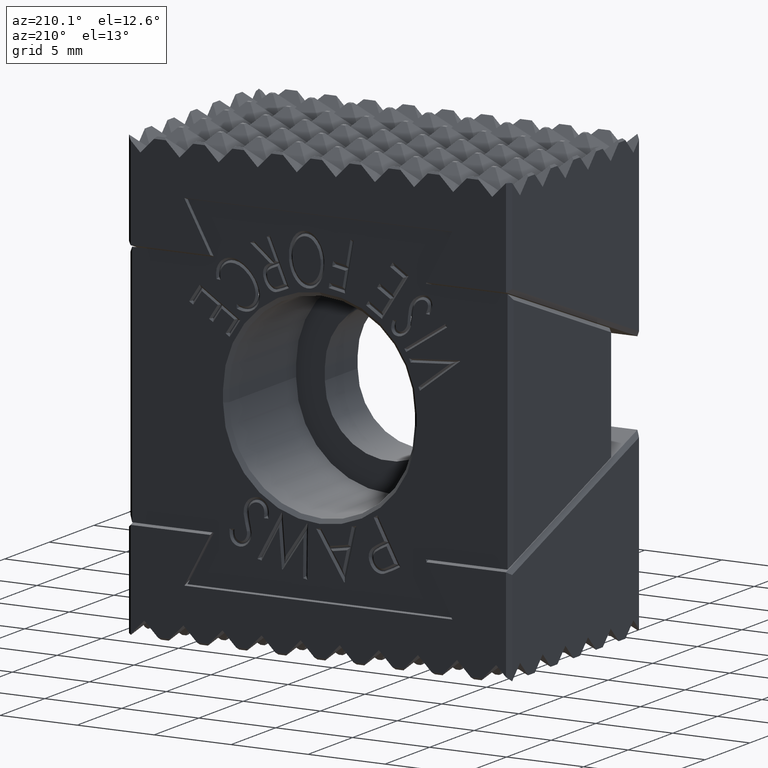
[diagram: clean part render]
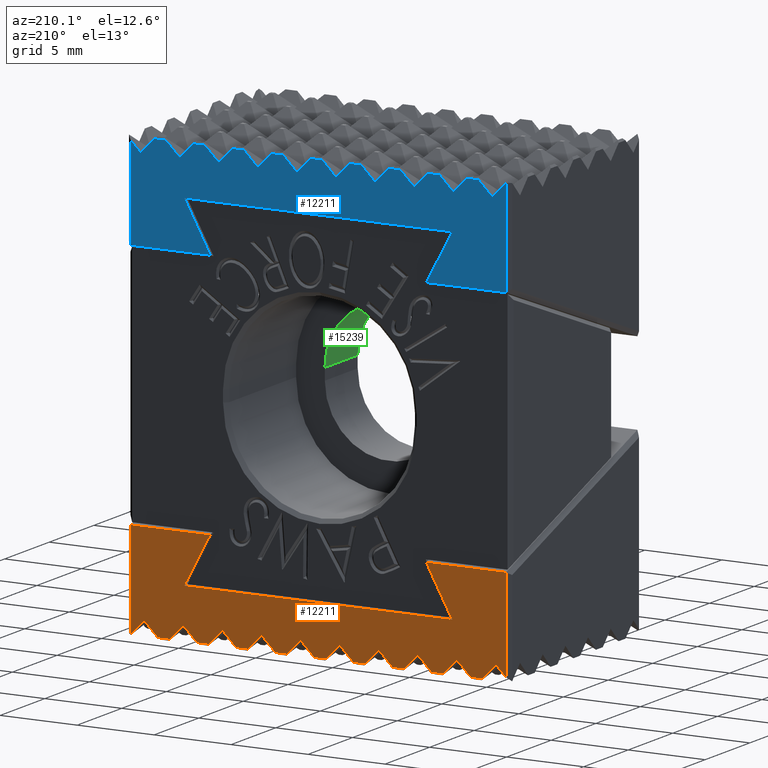
[diagram: same view with three faces highlighted in distinct colors, each labeled with its STEP entity id]
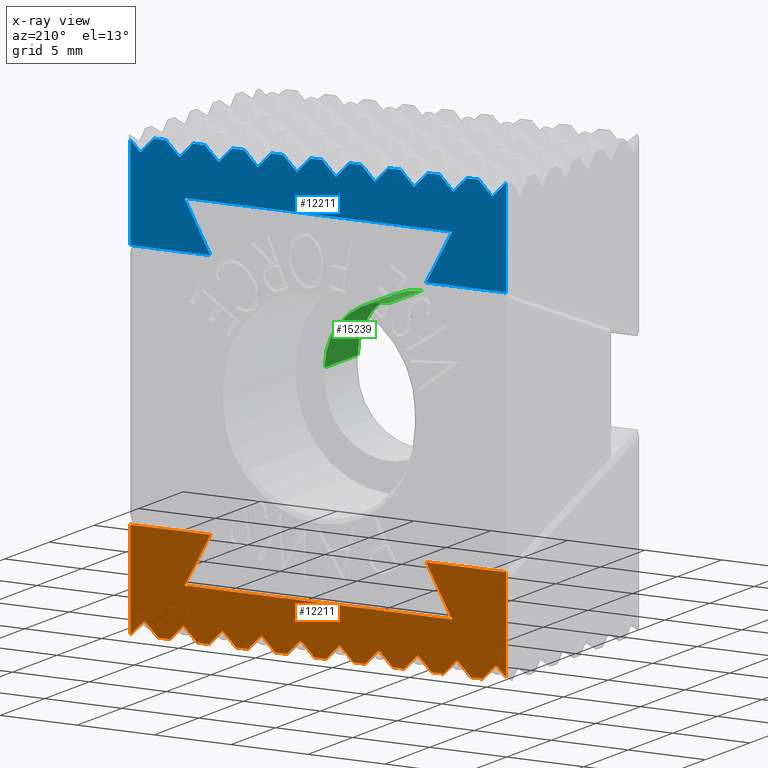
[diagram: x-ray of the same camera — body ghosted, the three highlighted faces saturated]
A machine part, auxiliary view with three faces highlighted in distinct colors.
The next image is the same camera in x-ray (body ghosted, the three faces saturated) — at least one of them is partly hidden behind the body in this view.
Their STEP definitions:

[orange] entity #12211 — the highlighted planar face has unit normal (-0, -1, 0).
#35 = LINE ( 'NONE', #5667, #8275 ) ;
#129 = VECTOR ( 'NONE', #3670, 39.37007874015748143 ) ;
#147 = CARTESIAN_POINT ( 'NONE',  ( 5.190511187962099918E-15, 0.5799999999999998490, 0.01000000000000009388 ) ) ;
#154 = CARTESIAN_POINT ( 'NONE',  ( 0.2578972641256064846, 0.5799999999999998490, -0.2762072594216366528 ) ) ;
#157 = EDGE_CURVE ( 'NONE', #8536, #16295, #10873, .T. ) ;
#335 = VECTOR ( 'NONE', #15856, 39.37007874015748143 ) ;
#478 = CARTESIAN_POINT ( 'NONE',  ( 0.04500000000000095590, 0.5799999999999999600, -0.3449999999999999178 ) ) ;
#570 = VECTOR ( 'NONE', #5255, 39.37007874015748143 ) ;
#643 = CARTESIAN_POINT ( 'NONE',  ( 0.2578972641256065401, 0.5799999999999998490, 0.4899999999999998246 ) ) ;
#667 = ORIENTED_EDGE ( 'NONE', *, *, #6059, .F. ) ;
#749 = DIRECTION ( 'NONE',  ( -0.7071067811865487940, 9.860761315262649757E-32, -0.7071067811865462405 ) ) ;
#814 = VECTOR ( 'NONE', #10030, 39.37007874015748854 ) ;
#829 = CARTESIAN_POINT ( 'NONE',  ( 6.283250385427805205E-15, 0.5799999999999998490, 0.1100000000000000283 ) ) ;
#962 = EDGE_CURVE ( 'NONE', #19814, #18743, #4843, .T. ) ;
#1115 = CARTESIAN_POINT ( 'NONE',  ( 0.01000000000000002970, 0.5799999999999999600, -0.3800000000000010036 ) ) ;
#1180 = DIRECTION ( 'NONE',  ( 0.7071067811865485719, 0.0000000000000000000, -0.7071067811865464625 ) ) ;
#1197 = CARTESIAN_POINT ( 'NONE',  ( 0.009999999999999962044, 0.5799999999999999600, 0.4899999999999998246 ) ) ;
#1231 = DIRECTION ( 'NONE',  ( 0.7071067811865485719, 0.0000000000000000000, -0.7071067811865464625 ) ) ;
#1317 = CARTESIAN_POINT ( 'NONE',  ( 0.01000000000000002970, 0.5799999999999998490, -0.08000000000000409561 ) ) ;
#1354 = EDGE_CURVE ( 'NONE', #7415, #11900, #8112, .T. ) ;
#1740 = CARTESIAN_POINT ( 'NONE',  ( 0.01000000000000002970, 0.5799999999999998490, 0.09000000000000503431 ) ) ;
#1776 = FACE_OUTER_BOUND ( 'NONE', #19823, .T. ) ;
#1782 = CARTESIAN_POINT ( 'NONE',  ( -6.829619984160658046E-17, 0.5799999999999999600, 0.4899999999999998246 ) ) ;
#1824 = CARTESIAN_POINT ( 'NONE',  ( 0.04500000000000314165, 0.5799999999999998490, -0.1450000000000000455 ) ) ;
#1935 = CARTESIAN_POINT ( 'NONE',  ( 0.009999999999999962044, 0.5799999999999999600, -0.2800000000000019140 ) ) ;
#1988 = DIRECTION ( 'NONE',  ( 0.7071067811865485719, 0.0000000000000000000, -0.7071067811865464625 ) ) ;
#2024 = VECTOR ( 'NONE', #9681, 39.37007874015748143 ) ;
#2041 = VERTEX_POINT ( 'NONE', #13659 ) ;
#2200 = EDGE_CURVE ( 'NONE', #9236, #16295, #16061, .T. ) ;
#2308 = DIRECTION ( 'NONE',  ( 0.8789733129752161922, 9.860761315262649757E-32, 0.4768709627114787186 ) ) ;
#2398 = DIRECTION ( 'NONE',  ( -0.7071067811865486830, 9.860761315262651947E-32, -0.7071067811865464625 ) ) ;
#2428 = CARTESIAN_POINT ( 'NONE',  ( 0.009999999999999962044, 0.5799999999999999600, 0.4899999999999998246 ) ) ;
#2462 = VECTOR ( 'NONE', #7531, 39.37007874015748143 ) ;
#2479 = EDGE_CURVE ( 'NONE', #7184, #9196, #8566, .T. ) ;
#2778 = DIRECTION ( 'NONE',  ( 0.0000000000000000000, -8.651438588012386691E-33, 1.000000000000000000 ) ) ;
#2795 = CARTESIAN_POINT ( 'NONE',  ( 0.01000000000000002970, 0.5799999999999998490, -0.009999999999995996466 ) ) ;
#2858 = CARTESIAN_POINT ( 'NONE',  ( 0.009999999999999892655, 0.5799999999999999600, 0.2900000000000070854 ) ) ;
#2884 = VERTEX_POINT ( 'NONE', #10025 ) ;
#2962 = EDGE_CURVE ( 'NONE', #7415, #18623, #14579, .T. ) ;
#3072 = EDGE_CURVE ( 'NONE', #5490, #5179, #9035, .T. ) ;
#3113 = VERTEX_POINT ( 'NONE', #10624 ) ;
#3234 = LINE ( 'NONE', #829, #7853 ) ;
#3269 = VERTEX_POINT ( 'NONE', #4953 ) ;
#3346 = DIRECTION ( 'NONE',  ( 0.0000000000000000000, 8.651438588012386691E-33, -1.000000000000000000 ) ) ;
#3392 = DIRECTION ( 'NONE',  ( 0.7071067811865485719, 0.0000000000000000000, -0.7071067811865464625 ) ) ;
#3469 = CARTESIAN_POINT ( 'NONE',  ( -6.829619984160658046E-17, 0.5799999999999999600, -0.4899999999999998246 ) ) ;
#3473 = CARTESIAN_POINT ( 'NONE',  ( 0.2578972641256065401, 0.5799999999999998490, 0.4899999999999998246 ) ) ;
#3616 = ORIENTED_EDGE ( 'NONE', *, *, #16701, .F. ) ;
#3620 = ORIENTED_EDGE ( 'NONE', *, *, #2479, .F. ) ;
#3630 = ORIENTED_EDGE ( 'NONE', *, *, #12282, .F. ) ;
#3670 = DIRECTION ( 'NONE',  ( 0.0000000000000000000, 8.651438588012386691E-33, -1.000000000000000000 ) ) ;
#3854 = EDGE_CURVE ( 'NONE', #12297, #13939, #8525, .T. ) ;
#3921 = ORIENTED_EDGE ( 'NONE', *, *, #17882, .T. ) ;
#3969 = ORIENTED_EDGE ( 'NONE', *, *, #4564, .T. ) ;
#4012 = LINE ( 'NONE', #8283, #570 ) ;
#4017 = EDGE_CURVE ( 'NONE', #8699, #12569, #4655, .T. ) ;
#4163 = VECTOR ( 'NONE', #11544, 39.37007874015748143 ) ;
#4244 = VECTOR ( 'NONE', #16653, 39.37007874015748854 ) ;
#4384 = VECTOR ( 'NONE', #1988, 39.37007874015748854 ) ;
#4454 = VECTOR ( 'NONE', #1231, 39.37007874015748854 ) ;
#4495 = LINE ( 'NONE', #12741, #12196 ) ;
#4543 = CARTESIAN_POINT ( 'NONE',  ( 1.024442997624098658E-15, 0.5799999999999999600, -0.3899999999999997913 ) ) ;
#4564 = EDGE_CURVE ( 'NONE', #15330, #3269, #15987, .T. ) ;
#4630 = CARTESIAN_POINT ( 'NONE',  ( 0.009999999999999962044, 0.5799999999999999600, 0.4899999999999998246 ) ) ;
#4655 = LINE ( 'NONE', #6217, #12834 ) ;
#4731 = DIRECTION ( 'NONE',  ( 0.7071067811865485719, 0.0000000000000000000, -0.7071067811865464625 ) ) ;
#4744 = VECTOR ( 'NONE', #2778, 39.37007874015748143 ) ;
#4843 = LINE ( 'NONE', #12802, #4384 ) ;
#4953 = CARTESIAN_POINT ( 'NONE',  ( 0.2578972641256065401, 0.5799999999999998490, 0.4799999999999998157 ) ) ;
#5055 = DIRECTION ( 'NONE',  ( -1.000000000000000000, 0.0000000000000000000, 0.0000000000000000000 ) ) ;
#5150 = ORIENTED_EDGE ( 'NONE', *, *, #16647, .T. ) ;
#5179 = VERTEX_POINT ( 'NONE', #7167 ) ;
#5255 = DIRECTION ( 'NONE',  ( -0.7071067811865486830, 9.860761315262651947E-32, -0.7071067811865464625 ) ) ;
#5309 = DIRECTION ( 'NONE',  ( -0.7071067811865486830, 9.860761315262651947E-32, -0.7071067811865464625 ) ) ;
#5331 = CARTESIAN_POINT ( 'NONE',  ( 0.01000000000000002970, 0.5799999999999998490, 0.1900000000000059974 ) ) ;
#5376 = CARTESIAN_POINT ( 'NONE',  ( 4.166068190338001457E-15, 0.5799999999999998490, -0.08999999999999989952 ) ) ;
#5393 = VERTEX_POINT ( 'NONE', #14176 ) ;
#5489 = EDGE_CURVE ( 'NONE', #10560, #11002, #19518, .T. ) ;
#5490 = VERTEX_POINT ( 'NONE', #5331 ) ;
#5596 = ORIENTED_EDGE ( 'NONE', *, *, #1354, .F. ) ;
#5667 = CARTESIAN_POINT ( 'NONE',  ( 0.009999999999999962044, 0.5799999999999999600, 0.4899999999999998246 ) ) ;
#5712 = CARTESIAN_POINT ( 'NONE',  ( 0.009999999999999962044, 0.5799999999999999600, -0.3099999999999989986 ) ) ;
#5938 = LINE ( 'NONE', #4630, #13685 ) ;
#6059 = EDGE_CURVE ( 'NONE', #2041, #11937, #11209, .T. ) ;
#6061 = VECTOR ( 'NONE', #6441, 39.37007874015748854 ) ;
#6070 = CARTESIAN_POINT ( 'NONE',  ( 0.04500000000000416167, 0.5799999999999998490, -0.04500000000000003997 ) ) ;
#6121 = VECTOR ( 'NONE', #20025, 39.37007874015748854 ) ;
#6154 = LINE ( 'NONE', #3473, #2024 ) ;
#6159 = DIRECTION ( 'NONE',  ( 0.0000000000000000000, -8.651438588012386691E-33, 1.000000000000000000 ) ) ;
#6217 = CARTESIAN_POINT ( 'NONE',  ( 0.009999999999999962044, 0.5799999999999999600, 0.4899999999999998246 ) ) ;
#6388 = CARTESIAN_POINT ( 'NONE',  ( 0.04500000000000723560, 0.5799999999999999600, 0.2549999999999998934 ) ) ;
#6441 = DIRECTION ( 'NONE',  ( 0.7071067811865485719, 0.0000000000000000000, -0.7071067811865464625 ) ) ;
#6447 = ORIENTED_EDGE ( 'NONE', *, *, #3072, .F. ) ;
#6475 = ORIENTED_EDGE ( 'NONE', *, *, #962, .F. ) ;
#6548 = VERTEX_POINT ( 'NONE', #12642 ) ;
#6648 = EDGE_CURVE ( 'NONE', #18743, #9886, #10716, .T. ) ;
#6671 = CARTESIAN_POINT ( 'NONE',  ( 0.01000000000000009909, 0.5799999999999999600, -0.4100000000000001421 ) ) ;
#6673 = EDGE_CURVE ( 'NONE', #5393, #10560, #7122, .T. ) ;
#6698 = ORIENTED_EDGE ( 'NONE', *, *, #15372, .F. ) ;
#6752 = CARTESIAN_POINT ( 'NONE',  ( 0.01000000000000002970, 0.5799999999999998490, 0.1199999999999937644 ) ) ;
#6830 = ORIENTED_EDGE ( 'NONE', *, *, #11559, .F. ) ;
#7122 = LINE ( 'NONE', #11569, #18480 ) ;
#7167 = CARTESIAN_POINT ( 'NONE',  ( 0.04500000000000621558, 0.5799999999999998490, 0.1549999999999998601 ) ) ;
#7184 = VERTEX_POINT ( 'NONE', #5712 ) ;
#7192 = VECTOR ( 'NONE', #5309, 39.37007874015748143 ) ;
#7195 = ORIENTED_EDGE ( 'NONE', *, *, #15457, .F. ) ;
#7405 = CARTESIAN_POINT ( 'NONE',  ( 8.263840180834396088E-15, 0.5799999999999999600, 0.3099999999999999978 ) ) ;
#7415 = VERTEX_POINT ( 'NONE', #1740 ) ;
#7483 = VERTEX_POINT ( 'NONE', #17365 ) ;
#7531 = DIRECTION ( 'NONE',  ( 0.0000000000000000000, -8.651438588012386691E-33, 1.000000000000000000 ) ) ;
#7538 = LINE ( 'NONE', #19754, #19391 ) ;
#7560 = EDGE_CURVE ( 'NONE', #3113, #11876, #18691, .T. ) ;
#7607 = CARTESIAN_POINT ( 'NONE',  ( 0.04500000000000204531, 0.5799999999999999600, -0.2450000000000000233 ) ) ;
#7853 = VECTOR ( 'NONE', #2398, 39.37007874015748143 ) ;
#8112 = LINE ( 'NONE', #17677, #14889 ) ;
#8142 = EDGE_CURVE ( 'NONE', #5490, #11340, #35, .T. ) ;
#8237 = VECTOR ( 'NONE', #17919, 39.37007874015748143 ) ;
#8243 = VERTEX_POINT ( 'NONE', #9659 ) ;
#8262 = ORIENTED_EDGE ( 'NONE', *, *, #16646, .F. ) ;
#8275 = VECTOR ( 'NONE', #8845, 39.37007874015748143 ) ;
#8283 = CARTESIAN_POINT ( 'NONE',  ( 7.239397183210296839E-15, 0.5799999999999998490, 0.2100000000000000200 ) ) ;
#8375 = LINE ( 'NONE', #12909, #129 ) ;
#8525 = LINE ( 'NONE', #16780, #2462 ) ;
#8536 = VERTEX_POINT ( 'NONE', #2858 ) ;
#8566 = LINE ( 'NONE', #10321, #13141 ) ;
#8699 = VERTEX_POINT ( 'NONE', #6671 ) ;
#8845 = DIRECTION ( 'NONE',  ( 0.0000000000000000000, -8.651438588012386691E-33, 1.000000000000000000 ) ) ;
#8876 = LINE ( 'NONE', #1824, #16602 ) ;
#8912 = ORIENTED_EDGE ( 'NONE', *, *, #7560, .F. ) ;
#8954 = EDGE_CURVE ( 'NONE', #8536, #15061, #7538, .T. ) ;
#9033 = LINE ( 'NONE', #9167, #12616 ) ;
#9035 = LINE ( 'NONE', #10484, #4454 ) ;
#9072 = EDGE_CURVE ( 'NONE', #8699, #2041, #14777, .T. ) ;
#9146 = ORIENTED_EDGE ( 'NONE', *, *, #4017, .T. ) ;
#9167 = CARTESIAN_POINT ( 'NONE',  ( 0.009999999999999962044, 0.5799999999999999600, 0.4899999999999998246 ) ) ;
#9183 = EDGE_CURVE ( 'NONE', #7184, #11876, #16949, .T. ) ;
#9196 = VERTEX_POINT ( 'NONE', #478 ) ;
#9236 = VERTEX_POINT ( 'NONE', #19573 ) ;
#9247 = VERTEX_POINT ( 'NONE', #14945 ) ;
#9345 = LINE ( 'NONE', #14290, #9814 ) ;
#9352 = ORIENTED_EDGE ( 'NONE', *, *, #13532, .T. ) ;
#9659 = CARTESIAN_POINT ( 'NONE',  ( 0.009999999999999962044, 0.5799999999999999600, 0.4199999999999906031 ) ) ;
#9681 = DIRECTION ( 'NONE',  ( 0.0000000000000000000, 8.651438588012386691E-33, -1.000000000000000000 ) ) ;
#9802 = VECTOR ( 'NONE', #10946, 39.37007874015748143 ) ;
#9814 = VECTOR ( 'NONE', #5055, 39.37007874015748143 ) ;
#9886 = VERTEX_POINT ( 'NONE', #1317 ) ;
#10025 = CARTESIAN_POINT ( 'NONE',  ( 0.01000000000000002970, 0.5799999999999998490, -0.1099999999999970307 ) ) ;
#10030 = DIRECTION ( 'NONE',  ( -0.8789733129752161922, 9.860761315262649757E-32, 0.4768709627114787186 ) ) ;
#10321 = CARTESIAN_POINT ( 'NONE',  ( 0.04500000000000095590, 0.5799999999999999600, -0.3449999999999999178 ) ) ;
#10379 = DIRECTION ( 'NONE',  ( 0.7071067811865485719, 0.0000000000000000000, -0.7071067811865464625 ) ) ;
#10461 = VECTOR ( 'NONE', #17662, 39.37007874015748143 ) ;
#10484 = CARTESIAN_POINT ( 'NONE',  ( 0.04500000000000621558, 0.5799999999999998490, 0.1549999999999998601 ) ) ;
#10560 = VERTEX_POINT ( 'NONE', #154 ) ;
#10605 = DIRECTION ( 'NONE',  ( 0.0000000000000000000, -8.651438588012386691E-33, 1.000000000000000000 ) ) ;
#10609 = EDGE_CURVE ( 'NONE', #7483, #8243, #10773, .T. ) ;
#10624 = CARTESIAN_POINT ( 'NONE',  ( 0.04500000000000204531, 0.5799999999999999600, -0.2450000000000000233 ) ) ;
#10716 = LINE ( 'NONE', #5376, #18962 ) ;
#10750 = VECTOR ( 'NONE', #16151, 39.37007874015748143 ) ;
#10773 = LINE ( 'NONE', #16116, #7192 ) ;
#10873 = LINE ( 'NONE', #15288, #18654 ) ;
#10918 = VECTOR ( 'NONE', #12959, 39.37007874015748143 ) ;
#10946 = DIRECTION ( 'NONE',  ( -0.7071067811865486830, 9.860761315262651947E-32, -0.7071067811865464625 ) ) ;
#11002 = VERTEX_POINT ( 'NONE', #15903 ) ;
#11209 = LINE ( 'NONE', #3469, #335 ) ;
#11316 = EDGE_CURVE ( 'NONE', #9247, #8243, #17063, .T. ) ;
#11340 = VERTEX_POINT ( 'NONE', #13590 ) ;
#11436 = ORIENTED_EDGE ( 'NONE', *, *, #2200, .F. ) ;
#11521 = DIRECTION ( 'NONE',  ( 0.7071067811865485719, 0.0000000000000000000, -0.7071067811865464625 ) ) ;
#11544 = DIRECTION ( 'NONE',  ( 1.000000000000000000, 0.0000000000000000000, 0.0000000000000000000 ) ) ;
#11559 = EDGE_CURVE ( 'NONE', #12297, #3113, #19763, .T. ) ;
#11569 = CARTESIAN_POINT ( 'NONE',  ( 0.3798083846171721456, 0.5799999999999998490, -0.2100666012971422192 ) ) ;
#11590 = EDGE_CURVE ( 'NONE', #2884, #9886, #5938, .T. ) ;
#11691 = CARTESIAN_POINT ( 'NONE',  ( -6.829619984160658046E-17, 0.5799999999999999600, 0.4799999999999998157 ) ) ;
#11788 = ORIENTED_EDGE ( 'NONE', *, *, #9072, .F. ) ;
#11876 = VERTEX_POINT ( 'NONE', #1935 ) ;
#11900 = VERTEX_POINT ( 'NONE', #16230 ) ;
#11937 = VERTEX_POINT ( 'NONE', #14736 ) ;
#12158 = ORIENTED_EDGE ( 'NONE', *, *, #6648, .F. ) ;
#12196 = VECTOR ( 'NONE', #14288, 39.37007874015748854 ) ;
#12211 = ADVANCED_FACE ( 'NONE', ( #1776 ), #12525, .F. ) ;
#12258 = VECTOR ( 'NONE', #4731, 39.37007874015748854 ) ;
#12282 = EDGE_CURVE ( 'NONE', #15330, #7483, #4495, .T. ) ;
#12297 = VERTEX_POINT ( 'NONE', #15870 ) ;
#12525 = PLANE ( 'NONE',  #15446 ) ;
#12569 = VERTEX_POINT ( 'NONE', #1115 ) ;
#12588 = DIRECTION ( 'NONE',  ( 0.0000000000000000000, -1.000000000000000000, -8.651438588012386691E-33 ) ) ;
#12616 = VECTOR ( 'NONE', #16873, 39.37007874015748143 ) ;
#12642 = CARTESIAN_POINT ( 'NONE',  ( 0.1355168202908766939, 0.5799999999999998490, 0.3426025403784442869 ) ) ;
#12724 = LINE ( 'NONE', #13985, #12258 ) ;
#12728 = CARTESIAN_POINT ( 'NONE',  ( 3.073328992872296170E-15, 0.5799999999999998490, -0.1899999999999998912 ) ) ;
#12741 = CARTESIAN_POINT ( 'NONE',  ( 0.04500000000000935196, 0.5799999999999999600, 0.4549999999999998490 ) ) ;
#12802 = CARTESIAN_POINT ( 'NONE',  ( 0.04500000000000416167, 0.5799999999999998490, -0.04500000000000003997 ) ) ;
#12834 = VECTOR ( 'NONE', #17036, 39.37007874015748143 ) ;
#12909 = CARTESIAN_POINT ( 'NONE',  ( 0.1355168202908767494, 0.5799999999999998490, 0.4899999999999998246 ) ) ;
#12953 = ORIENTED_EDGE ( 'NONE', *, *, #157, .T. ) ;
#12959 = DIRECTION ( 'NONE',  ( -0.7071067811865486830, 9.860761315262651947E-32, -0.7071067811865464625 ) ) ;
#13064 = EDGE_CURVE ( 'NONE', #9196, #12569, #14331, .T. ) ;
#13141 = VECTOR ( 'NONE', #10379, 39.37007874015748854 ) ;
#13228 = ORIENTED_EDGE ( 'NONE', *, *, #6673, .T. ) ;
#13532 = EDGE_CURVE ( 'NONE', #19814, #13780, #9033, .T. ) ;
#13554 = ORIENTED_EDGE ( 'NONE', *, *, #9183, .T. ) ;
#13590 = CARTESIAN_POINT ( 'NONE',  ( 0.009999999999999962044, 0.5799999999999998490, 0.2199999999999926736 ) ) ;
#13659 = CARTESIAN_POINT ( 'NONE',  ( 0.04499999999999999833, 0.5799999999999999600, -0.4449999999999999512 ) ) ;
#13685 = VECTOR ( 'NONE', #6159, 39.37007874015748143 ) ;
#13780 = VERTEX_POINT ( 'NONE', #18216 ) ;
#13797 = ORIENTED_EDGE ( 'NONE', *, *, #10609, .F. ) ;
#13826 = ORIENTED_EDGE ( 'NONE', *, *, #3854, .T. ) ;
#13904 = VECTOR ( 'NONE', #17393, 39.37007874015748143 ) ;
#13939 = VERTEX_POINT ( 'NONE', #18615 ) ;
#13985 = CARTESIAN_POINT ( 'NONE',  ( 0.04500000000000826256, 0.5799999999999999600, 0.3549999999999998157 ) ) ;
#14176 = CARTESIAN_POINT ( 'NONE',  ( 0.1355168202908766939, 0.5799999999999998490, -0.3426025403784442869 ) ) ;
#14288 = DIRECTION ( 'NONE',  ( 0.7071067811865485719, 0.0000000000000000000, -0.7071067811865464625 ) ) ;
#14290 = CARTESIAN_POINT ( 'NONE',  ( 0.0000000000000000000, 0.5799999999999999600, -0.4799999999999998157 ) ) ;
#14331 = LINE ( 'NONE', #4543, #6121 ) ;
#14556 = CARTESIAN_POINT ( 'NONE',  ( 0.009999999999999962044, 0.5799999999999999600, 0.4899999999999998246 ) ) ;
#14579 = LINE ( 'NONE', #14556, #10461 ) ;
#14637 = CARTESIAN_POINT ( 'NONE',  ( -0.03096532833989321457, 0.5799999999999999600, 0.4329243980729670649 ) ) ;
#14638 = VECTOR ( 'NONE', #16861, 39.37007874015748854 ) ;
#14736 = CARTESIAN_POINT ( 'NONE',  ( 0.01000000000000009909, 0.5799999999999999600, -0.4799999999999998157 ) ) ;
#14777 = LINE ( 'NONE', #15704, #6061 ) ;
#14889 = VECTOR ( 'NONE', #11521, 39.37007874015748854 ) ;
#14945 = CARTESIAN_POINT ( 'NONE',  ( 0.01000000000000002970, 0.5799999999999999600, 0.3900000000000080624 ) ) ;
#15061 = VERTEX_POINT ( 'NONE', #6388 ) ;
#15288 = CARTESIAN_POINT ( 'NONE',  ( 0.009999999999999962044, 0.5799999999999999600, 0.4899999999999998246 ) ) ;
#15330 = VERTEX_POINT ( 'NONE', #16998 ) ;
#15372 = EDGE_CURVE ( 'NONE', #11900, #13780, #17556, .T. ) ;
#15446 = AXIS2_PLACEMENT_3D ( 'NONE', #1782, #12588, #3346 ) ;
#15457 = EDGE_CURVE ( 'NONE', #2884, #19696, #8876, .T. ) ;
#15481 = EDGE_CURVE ( 'NONE', #6548, #5393, #8375, .T. ) ;
#15704 = CARTESIAN_POINT ( 'NONE',  ( 0.04499999999999999833, 0.5799999999999999600, -0.4449999999999999512 ) ) ;
#15788 = ORIENTED_EDGE ( 'NONE', *, *, #19011, .T. ) ;
#15856 = DIRECTION ( 'NONE',  ( -0.7071067811865486830, 9.860761315262651947E-32, -0.7071067811865464625 ) ) ;
#15870 = CARTESIAN_POINT ( 'NONE',  ( 0.009999999999999962044, 0.5799999999999998490, -0.2099999999999981048 ) ) ;
#15903 = CARTESIAN_POINT ( 'NONE',  ( 0.2578972641256065401, 0.5799999999999998490, -0.4799999999999998157 ) ) ;
#15987 = LINE ( 'NONE', #11691, #4163 ) ;
#16061 = LINE ( 'NONE', #7405, #4244 ) ;
#16116 = CARTESIAN_POINT ( 'NONE',  ( 9.356579378300102164E-15, 0.5799999999999999600, 0.4099999999999999756 ) ) ;
#16151 = DIRECTION ( 'NONE',  ( 0.0000000000000000000, 8.651438588012386691E-33, -1.000000000000000000 ) ) ;
#16230 = CARTESIAN_POINT ( 'NONE',  ( 0.04500000000000518863, 0.5799999999999998490, 0.05499999999999995171 ) ) ;
#16295 = VERTEX_POINT ( 'NONE', #19487 ) ;
#16364 = ORIENTED_EDGE ( 'NONE', *, *, #15481, .T. ) ;
#16598 = CARTESIAN_POINT ( 'NONE',  ( 0.2578972641256063181, 0.5799999999999998490, 0.2762072594216365973 ) ) ;
#16602 = VECTOR ( 'NONE', #3392, 39.37007874015748854 ) ;
#16646 = EDGE_CURVE ( 'NONE', #19696, #13939, #18020, .T. ) ;
#16647 = EDGE_CURVE ( 'NONE', #3269, #16941, #6154, .T. ) ;
#16653 = DIRECTION ( 'NONE',  ( -0.7071067811865487940, 9.860761315262649757E-32, -0.7071067811865462405 ) ) ;
#16701 = EDGE_CURVE ( 'NONE', #15061, #11340, #4012, .T. ) ;
#16748 = ORIENTED_EDGE ( 'NONE', *, *, #8142, .T. ) ;
#16780 = CARTESIAN_POINT ( 'NONE',  ( 0.009999999999999962044, 0.5799999999999999600, 0.4899999999999998246 ) ) ;
#16799 = EDGE_CURVE ( 'NONE', #5179, #18623, #3234, .T. ) ;
#16861 = DIRECTION ( 'NONE',  ( 0.7071067811865485719, 0.0000000000000000000, -0.7071067811865464625 ) ) ;
#16873 = DIRECTION ( 'NONE',  ( 0.0000000000000000000, -8.651438588012386691E-33, 1.000000000000000000 ) ) ;
#16941 = VERTEX_POINT ( 'NONE', #16598 ) ;
#16949 = LINE ( 'NONE', #2428, #8237 ) ;
#16998 = CARTESIAN_POINT ( 'NONE',  ( 0.02000000000000934711, 0.5799999999999999600, 0.4799999999999998157 ) ) ;
#17036 = DIRECTION ( 'NONE',  ( 0.0000000000000000000, -8.651438588012386691E-33, 1.000000000000000000 ) ) ;
#17063 = LINE ( 'NONE', #1197, #4744 ) ;
#17147 = ORIENTED_EDGE ( 'NONE', *, *, #2962, .T. ) ;
#17365 = CARTESIAN_POINT ( 'NONE',  ( 0.04500000000000935196, 0.5799999999999999600, 0.4549999999999998490 ) ) ;
#17393 = DIRECTION ( 'NONE',  ( -0.7071067811865486830, 9.860761315262651947E-32, -0.7071067811865464625 ) ) ;
#17556 = LINE ( 'NONE', #147, #9802 ) ;
#17629 = CARTESIAN_POINT ( 'NONE',  ( 2.048885995248197315E-15, 0.5799999999999999600, -0.2899999999999998690 ) ) ;
#17662 = DIRECTION ( 'NONE',  ( 0.0000000000000000000, -8.651438588012386691E-33, 1.000000000000000000 ) ) ;
#17672 = ORIENTED_EDGE ( 'NONE', *, *, #11316, .T. ) ;
#17677 = CARTESIAN_POINT ( 'NONE',  ( 0.04500000000000518863, 0.5799999999999998490, 0.05499999999999995171 ) ) ;
#17761 = LINE ( 'NONE', #14637, #814 ) ;
#17882 = EDGE_CURVE ( 'NONE', #16941, #6548, #17761, .T. ) ;
#17919 = DIRECTION ( 'NONE',  ( 0.0000000000000000000, -8.651438588012386691E-33, 1.000000000000000000 ) ) ;
#17972 = ORIENTED_EDGE ( 'NONE', *, *, #18851, .F. ) ;
#18005 = ORIENTED_EDGE ( 'NONE', *, *, #11590, .T. ) ;
#18020 = LINE ( 'NONE', #12728, #13904 ) ;
#18139 = CARTESIAN_POINT ( 'NONE',  ( 0.04500000000000314165, 0.5799999999999998490, -0.1450000000000000455 ) ) ;
#18180 = ORIENTED_EDGE ( 'NONE', *, *, #8954, .F. ) ;
#18216 = CARTESIAN_POINT ( 'NONE',  ( 0.01000000000000002970, 0.5799999999999998490, 0.01999999999999484482 ) ) ;
#18480 = VECTOR ( 'NONE', #2308, 39.37007874015748854 ) ;
#18615 = CARTESIAN_POINT ( 'NONE',  ( 0.01000000000000002970, 0.5799999999999998490, -0.1800000000000030742 ) ) ;
#18623 = VERTEX_POINT ( 'NONE', #6752 ) ;
#18654 = VECTOR ( 'NONE', #10605, 39.37007874015748143 ) ;
#18691 = LINE ( 'NONE', #17629, #10918 ) ;
#18743 = VERTEX_POINT ( 'NONE', #6070 ) ;
#18851 = EDGE_CURVE ( 'NONE', #9247, #9236, #12724, .T. ) ;
#18962 = VECTOR ( 'NONE', #749, 39.37007874015748854 ) ;
#19011 = EDGE_CURVE ( 'NONE', #11002, #11937, #9345, .T. ) ;
#19200 = ORIENTED_EDGE ( 'NONE', *, *, #16799, .F. ) ;
#19391 = VECTOR ( 'NONE', #1180, 39.37007874015748854 ) ;
#19487 = CARTESIAN_POINT ( 'NONE',  ( 0.009999999999999892655, 0.5799999999999999600, 0.3199999999999916245 ) ) ;
#19518 = LINE ( 'NONE', #643, #10750 ) ;
#19573 = CARTESIAN_POINT ( 'NONE',  ( 0.04500000000000826256, 0.5799999999999999600, 0.3549999999999998157 ) ) ;
#19696 = VERTEX_POINT ( 'NONE', #18139 ) ;
#19754 = CARTESIAN_POINT ( 'NONE',  ( 0.04500000000000723560, 0.5799999999999999600, 0.2549999999999998934 ) ) ;
#19763 = LINE ( 'NONE', #7607, #14638 ) ;
#19814 = VERTEX_POINT ( 'NONE', #2795 ) ;
#19823 = EDGE_LOOP ( 'NONE', ( #17672, #13797, #3630, #3969, #5150, #3921, #16364, #13228, #19979, #15788, #667, #11788, #9146, #19893, #3620, #13554, #8912, #6830, #13826, #8262, #7195, #18005, #12158, #6475, #9352, #6698, #5596, #17147, #19200, #6447, #16748, #3616, #18180, #12953, #11436, #17972 ) ) ;
#19893 = ORIENTED_EDGE ( 'NONE', *, *, #13064, .F. ) ;
#19979 = ORIENTED_EDGE ( 'NONE', *, *, #5489, .T. ) ;
#20025 = DIRECTION ( 'NONE',  ( -0.7071067811865487940, 9.860761315262649757E-32, -0.7071067811865462405 ) ) ;

[blue] entity #12211 — the highlighted planar face has unit normal (-0, -1, -0).
#35 = LINE ( 'NONE', #5667, #8275 ) ;
#129 = VECTOR ( 'NONE', #3670, 39.37007874015748143 ) ;
#147 = CARTESIAN_POINT ( 'NONE',  ( 5.190511187962099918E-15, 0.5799999999999998490, 0.01000000000000009388 ) ) ;
#154 = CARTESIAN_POINT ( 'NONE',  ( 0.2578972641256064846, 0.5799999999999998490, -0.2762072594216366528 ) ) ;
#157 = EDGE_CURVE ( 'NONE', #8536, #16295, #10873, .T. ) ;
#335 = VECTOR ( 'NONE', #15856, 39.37007874015748143 ) ;
#478 = CARTESIAN_POINT ( 'NONE',  ( 0.04500000000000095590, 0.5799999999999999600, -0.3449999999999999178 ) ) ;
#570 = VECTOR ( 'NONE', #5255, 39.37007874015748143 ) ;
#643 = CARTESIAN_POINT ( 'NONE',  ( 0.2578972641256065401, 0.5799999999999998490, 0.4899999999999998246 ) ) ;
#667 = ORIENTED_EDGE ( 'NONE', *, *, #6059, .F. ) ;
#749 = DIRECTION ( 'NONE',  ( -0.7071067811865487940, 9.860761315262649757E-32, -0.7071067811865462405 ) ) ;
#814 = VECTOR ( 'NONE', #10030, 39.37007874015748854 ) ;
#829 = CARTESIAN_POINT ( 'NONE',  ( 6.283250385427805205E-15, 0.5799999999999998490, 0.1100000000000000283 ) ) ;
#962 = EDGE_CURVE ( 'NONE', #19814, #18743, #4843, .T. ) ;
#1115 = CARTESIAN_POINT ( 'NONE',  ( 0.01000000000000002970, 0.5799999999999999600, -0.3800000000000010036 ) ) ;
#1180 = DIRECTION ( 'NONE',  ( 0.7071067811865485719, 0.0000000000000000000, -0.7071067811865464625 ) ) ;
#1197 = CARTESIAN_POINT ( 'NONE',  ( 0.009999999999999962044, 0.5799999999999999600, 0.4899999999999998246 ) ) ;
#1231 = DIRECTION ( 'NONE',  ( 0.7071067811865485719, 0.0000000000000000000, -0.7071067811865464625 ) ) ;
#1317 = CARTESIAN_POINT ( 'NONE',  ( 0.01000000000000002970, 0.5799999999999998490, -0.08000000000000409561 ) ) ;
#1354 = EDGE_CURVE ( 'NONE', #7415, #11900, #8112, .T. ) ;
#1740 = CARTESIAN_POINT ( 'NONE',  ( 0.01000000000000002970, 0.5799999999999998490, 0.09000000000000503431 ) ) ;
#1776 = FACE_OUTER_BOUND ( 'NONE', #19823, .T. ) ;
#1782 = CARTESIAN_POINT ( 'NONE',  ( -6.829619984160658046E-17, 0.5799999999999999600, 0.4899999999999998246 ) ) ;
#1824 = CARTESIAN_POINT ( 'NONE',  ( 0.04500000000000314165, 0.5799999999999998490, -0.1450000000000000455 ) ) ;
#1935 = CARTESIAN_POINT ( 'NONE',  ( 0.009999999999999962044, 0.5799999999999999600, -0.2800000000000019140 ) ) ;
#1988 = DIRECTION ( 'NONE',  ( 0.7071067811865485719, 0.0000000000000000000, -0.7071067811865464625 ) ) ;
#2024 = VECTOR ( 'NONE', #9681, 39.37007874015748143 ) ;
#2041 = VERTEX_POINT ( 'NONE', #13659 ) ;
#2200 = EDGE_CURVE ( 'NONE', #9236, #16295, #16061, .T. ) ;
#2308 = DIRECTION ( 'NONE',  ( 0.8789733129752161922, 9.860761315262649757E-32, 0.4768709627114787186 ) ) ;
#2398 = DIRECTION ( 'NONE',  ( -0.7071067811865486830, 9.860761315262651947E-32, -0.7071067811865464625 ) ) ;
#2428 = CARTESIAN_POINT ( 'NONE',  ( 0.009999999999999962044, 0.5799999999999999600, 0.4899999999999998246 ) ) ;
#2462 = VECTOR ( 'NONE', #7531, 39.37007874015748143 ) ;
#2479 = EDGE_CURVE ( 'NONE', #7184, #9196, #8566, .T. ) ;
#2778 = DIRECTION ( 'NONE',  ( 0.0000000000000000000, -8.651438588012386691E-33, 1.000000000000000000 ) ) ;
#2795 = CARTESIAN_POINT ( 'NONE',  ( 0.01000000000000002970, 0.5799999999999998490, -0.009999999999995996466 ) ) ;
#2858 = CARTESIAN_POINT ( 'NONE',  ( 0.009999999999999892655, 0.5799999999999999600, 0.2900000000000070854 ) ) ;
#2884 = VERTEX_POINT ( 'NONE', #10025 ) ;
#2962 = EDGE_CURVE ( 'NONE', #7415, #18623, #14579, .T. ) ;
#3072 = EDGE_CURVE ( 'NONE', #5490, #5179, #9035, .T. ) ;
#3113 = VERTEX_POINT ( 'NONE', #10624 ) ;
#3234 = LINE ( 'NONE', #829, #7853 ) ;
#3269 = VERTEX_POINT ( 'NONE', #4953 ) ;
#3346 = DIRECTION ( 'NONE',  ( 0.0000000000000000000, 8.651438588012386691E-33, -1.000000000000000000 ) ) ;
#3392 = DIRECTION ( 'NONE',  ( 0.7071067811865485719, 0.0000000000000000000, -0.7071067811865464625 ) ) ;
#3469 = CARTESIAN_POINT ( 'NONE',  ( -6.829619984160658046E-17, 0.5799999999999999600, -0.4899999999999998246 ) ) ;
#3473 = CARTESIAN_POINT ( 'NONE',  ( 0.2578972641256065401, 0.5799999999999998490, 0.4899999999999998246 ) ) ;
#3616 = ORIENTED_EDGE ( 'NONE', *, *, #16701, .F. ) ;
#3620 = ORIENTED_EDGE ( 'NONE', *, *, #2479, .F. ) ;
#3630 = ORIENTED_EDGE ( 'NONE', *, *, #12282, .F. ) ;
#3670 = DIRECTION ( 'NONE',  ( 0.0000000000000000000, 8.651438588012386691E-33, -1.000000000000000000 ) ) ;
#3854 = EDGE_CURVE ( 'NONE', #12297, #13939, #8525, .T. ) ;
#3921 = ORIENTED_EDGE ( 'NONE', *, *, #17882, .T. ) ;
#3969 = ORIENTED_EDGE ( 'NONE', *, *, #4564, .T. ) ;
#4012 = LINE ( 'NONE', #8283, #570 ) ;
#4017 = EDGE_CURVE ( 'NONE', #8699, #12569, #4655, .T. ) ;
#4163 = VECTOR ( 'NONE', #11544, 39.37007874015748143 ) ;
#4244 = VECTOR ( 'NONE', #16653, 39.37007874015748854 ) ;
#4384 = VECTOR ( 'NONE', #1988, 39.37007874015748854 ) ;
#4454 = VECTOR ( 'NONE', #1231, 39.37007874015748854 ) ;
#4495 = LINE ( 'NONE', #12741, #12196 ) ;
#4543 = CARTESIAN_POINT ( 'NONE',  ( 1.024442997624098658E-15, 0.5799999999999999600, -0.3899999999999997913 ) ) ;
#4564 = EDGE_CURVE ( 'NONE', #15330, #3269, #15987, .T. ) ;
#4630 = CARTESIAN_POINT ( 'NONE',  ( 0.009999999999999962044, 0.5799999999999999600, 0.4899999999999998246 ) ) ;
#4655 = LINE ( 'NONE', #6217, #12834 ) ;
#4731 = DIRECTION ( 'NONE',  ( 0.7071067811865485719, 0.0000000000000000000, -0.7071067811865464625 ) ) ;
#4744 = VECTOR ( 'NONE', #2778, 39.37007874015748143 ) ;
#4843 = LINE ( 'NONE', #12802, #4384 ) ;
#4953 = CARTESIAN_POINT ( 'NONE',  ( 0.2578972641256065401, 0.5799999999999998490, 0.4799999999999998157 ) ) ;
#5055 = DIRECTION ( 'NONE',  ( -1.000000000000000000, 0.0000000000000000000, 0.0000000000000000000 ) ) ;
#5150 = ORIENTED_EDGE ( 'NONE', *, *, #16647, .T. ) ;
#5179 = VERTEX_POINT ( 'NONE', #7167 ) ;
#5255 = DIRECTION ( 'NONE',  ( -0.7071067811865486830, 9.860761315262651947E-32, -0.7071067811865464625 ) ) ;
#5309 = DIRECTION ( 'NONE',  ( -0.7071067811865486830, 9.860761315262651947E-32, -0.7071067811865464625 ) ) ;
#5331 = CARTESIAN_POINT ( 'NONE',  ( 0.01000000000000002970, 0.5799999999999998490, 0.1900000000000059974 ) ) ;
#5376 = CARTESIAN_POINT ( 'NONE',  ( 4.166068190338001457E-15, 0.5799999999999998490, -0.08999999999999989952 ) ) ;
#5393 = VERTEX_POINT ( 'NONE', #14176 ) ;
#5489 = EDGE_CURVE ( 'NONE', #10560, #11002, #19518, .T. ) ;
#5490 = VERTEX_POINT ( 'NONE', #5331 ) ;
#5596 = ORIENTED_EDGE ( 'NONE', *, *, #1354, .F. ) ;
#5667 = CARTESIAN_POINT ( 'NONE',  ( 0.009999999999999962044, 0.5799999999999999600, 0.4899999999999998246 ) ) ;
#5712 = CARTESIAN_POINT ( 'NONE',  ( 0.009999999999999962044, 0.5799999999999999600, -0.3099999999999989986 ) ) ;
#5938 = LINE ( 'NONE', #4630, #13685 ) ;
#6059 = EDGE_CURVE ( 'NONE', #2041, #11937, #11209, .T. ) ;
#6061 = VECTOR ( 'NONE', #6441, 39.37007874015748854 ) ;
#6070 = CARTESIAN_POINT ( 'NONE',  ( 0.04500000000000416167, 0.5799999999999998490, -0.04500000000000003997 ) ) ;
#6121 = VECTOR ( 'NONE', #20025, 39.37007874015748854 ) ;
#6154 = LINE ( 'NONE', #3473, #2024 ) ;
#6159 = DIRECTION ( 'NONE',  ( 0.0000000000000000000, -8.651438588012386691E-33, 1.000000000000000000 ) ) ;
#6217 = CARTESIAN_POINT ( 'NONE',  ( 0.009999999999999962044, 0.5799999999999999600, 0.4899999999999998246 ) ) ;
#6388 = CARTESIAN_POINT ( 'NONE',  ( 0.04500000000000723560, 0.5799999999999999600, 0.2549999999999998934 ) ) ;
#6441 = DIRECTION ( 'NONE',  ( 0.7071067811865485719, 0.0000000000000000000, -0.7071067811865464625 ) ) ;
#6447 = ORIENTED_EDGE ( 'NONE', *, *, #3072, .F. ) ;
#6475 = ORIENTED_EDGE ( 'NONE', *, *, #962, .F. ) ;
#6548 = VERTEX_POINT ( 'NONE', #12642 ) ;
#6648 = EDGE_CURVE ( 'NONE', #18743, #9886, #10716, .T. ) ;
#6671 = CARTESIAN_POINT ( 'NONE',  ( 0.01000000000000009909, 0.5799999999999999600, -0.4100000000000001421 ) ) ;
#6673 = EDGE_CURVE ( 'NONE', #5393, #10560, #7122, .T. ) ;
#6698 = ORIENTED_EDGE ( 'NONE', *, *, #15372, .F. ) ;
#6752 = CARTESIAN_POINT ( 'NONE',  ( 0.01000000000000002970, 0.5799999999999998490, 0.1199999999999937644 ) ) ;
#6830 = ORIENTED_EDGE ( 'NONE', *, *, #11559, .F. ) ;
#7122 = LINE ( 'NONE', #11569, #18480 ) ;
#7167 = CARTESIAN_POINT ( 'NONE',  ( 0.04500000000000621558, 0.5799999999999998490, 0.1549999999999998601 ) ) ;
#7184 = VERTEX_POINT ( 'NONE', #5712 ) ;
#7192 = VECTOR ( 'NONE', #5309, 39.37007874015748143 ) ;
#7195 = ORIENTED_EDGE ( 'NONE', *, *, #15457, .F. ) ;
#7405 = CARTESIAN_POINT ( 'NONE',  ( 8.263840180834396088E-15, 0.5799999999999999600, 0.3099999999999999978 ) ) ;
#7415 = VERTEX_POINT ( 'NONE', #1740 ) ;
#7483 = VERTEX_POINT ( 'NONE', #17365 ) ;
#7531 = DIRECTION ( 'NONE',  ( 0.0000000000000000000, -8.651438588012386691E-33, 1.000000000000000000 ) ) ;
#7538 = LINE ( 'NONE', #19754, #19391 ) ;
#7560 = EDGE_CURVE ( 'NONE', #3113, #11876, #18691, .T. ) ;
#7607 = CARTESIAN_POINT ( 'NONE',  ( 0.04500000000000204531, 0.5799999999999999600, -0.2450000000000000233 ) ) ;
#7853 = VECTOR ( 'NONE', #2398, 39.37007874015748143 ) ;
#8112 = LINE ( 'NONE', #17677, #14889 ) ;
#8142 = EDGE_CURVE ( 'NONE', #5490, #11340, #35, .T. ) ;
#8237 = VECTOR ( 'NONE', #17919, 39.37007874015748143 ) ;
#8243 = VERTEX_POINT ( 'NONE', #9659 ) ;
#8262 = ORIENTED_EDGE ( 'NONE', *, *, #16646, .F. ) ;
#8275 = VECTOR ( 'NONE', #8845, 39.37007874015748143 ) ;
#8283 = CARTESIAN_POINT ( 'NONE',  ( 7.239397183210296839E-15, 0.5799999999999998490, 0.2100000000000000200 ) ) ;
#8375 = LINE ( 'NONE', #12909, #129 ) ;
#8525 = LINE ( 'NONE', #16780, #2462 ) ;
#8536 = VERTEX_POINT ( 'NONE', #2858 ) ;
#8566 = LINE ( 'NONE', #10321, #13141 ) ;
#8699 = VERTEX_POINT ( 'NONE', #6671 ) ;
#8845 = DIRECTION ( 'NONE',  ( 0.0000000000000000000, -8.651438588012386691E-33, 1.000000000000000000 ) ) ;
#8876 = LINE ( 'NONE', #1824, #16602 ) ;
#8912 = ORIENTED_EDGE ( 'NONE', *, *, #7560, .F. ) ;
#8954 = EDGE_CURVE ( 'NONE', #8536, #15061, #7538, .T. ) ;
#9033 = LINE ( 'NONE', #9167, #12616 ) ;
#9035 = LINE ( 'NONE', #10484, #4454 ) ;
#9072 = EDGE_CURVE ( 'NONE', #8699, #2041, #14777, .T. ) ;
#9146 = ORIENTED_EDGE ( 'NONE', *, *, #4017, .T. ) ;
#9167 = CARTESIAN_POINT ( 'NONE',  ( 0.009999999999999962044, 0.5799999999999999600, 0.4899999999999998246 ) ) ;
#9183 = EDGE_CURVE ( 'NONE', #7184, #11876, #16949, .T. ) ;
#9196 = VERTEX_POINT ( 'NONE', #478 ) ;
#9236 = VERTEX_POINT ( 'NONE', #19573 ) ;
#9247 = VERTEX_POINT ( 'NONE', #14945 ) ;
#9345 = LINE ( 'NONE', #14290, #9814 ) ;
#9352 = ORIENTED_EDGE ( 'NONE', *, *, #13532, .T. ) ;
#9659 = CARTESIAN_POINT ( 'NONE',  ( 0.009999999999999962044, 0.5799999999999999600, 0.4199999999999906031 ) ) ;
#9681 = DIRECTION ( 'NONE',  ( 0.0000000000000000000, 8.651438588012386691E-33, -1.000000000000000000 ) ) ;
#9802 = VECTOR ( 'NONE', #10946, 39.37007874015748143 ) ;
#9814 = VECTOR ( 'NONE', #5055, 39.37007874015748143 ) ;
#9886 = VERTEX_POINT ( 'NONE', #1317 ) ;
#10025 = CARTESIAN_POINT ( 'NONE',  ( 0.01000000000000002970, 0.5799999999999998490, -0.1099999999999970307 ) ) ;
#10030 = DIRECTION ( 'NONE',  ( -0.8789733129752161922, 9.860761315262649757E-32, 0.4768709627114787186 ) ) ;
#10321 = CARTESIAN_POINT ( 'NONE',  ( 0.04500000000000095590, 0.5799999999999999600, -0.3449999999999999178 ) ) ;
#10379 = DIRECTION ( 'NONE',  ( 0.7071067811865485719, 0.0000000000000000000, -0.7071067811865464625 ) ) ;
#10461 = VECTOR ( 'NONE', #17662, 39.37007874015748143 ) ;
#10484 = CARTESIAN_POINT ( 'NONE',  ( 0.04500000000000621558, 0.5799999999999998490, 0.1549999999999998601 ) ) ;
#10560 = VERTEX_POINT ( 'NONE', #154 ) ;
#10605 = DIRECTION ( 'NONE',  ( 0.0000000000000000000, -8.651438588012386691E-33, 1.000000000000000000 ) ) ;
#10609 = EDGE_CURVE ( 'NONE', #7483, #8243, #10773, .T. ) ;
#10624 = CARTESIAN_POINT ( 'NONE',  ( 0.04500000000000204531, 0.5799999999999999600, -0.2450000000000000233 ) ) ;
#10716 = LINE ( 'NONE', #5376, #18962 ) ;
#10750 = VECTOR ( 'NONE', #16151, 39.37007874015748143 ) ;
#10773 = LINE ( 'NONE', #16116, #7192 ) ;
#10873 = LINE ( 'NONE', #15288, #18654 ) ;
#10918 = VECTOR ( 'NONE', #12959, 39.37007874015748143 ) ;
#10946 = DIRECTION ( 'NONE',  ( -0.7071067811865486830, 9.860761315262651947E-32, -0.7071067811865464625 ) ) ;
#11002 = VERTEX_POINT ( 'NONE', #15903 ) ;
#11209 = LINE ( 'NONE', #3469, #335 ) ;
#11316 = EDGE_CURVE ( 'NONE', #9247, #8243, #17063, .T. ) ;
#11340 = VERTEX_POINT ( 'NONE', #13590 ) ;
#11436 = ORIENTED_EDGE ( 'NONE', *, *, #2200, .F. ) ;
#11521 = DIRECTION ( 'NONE',  ( 0.7071067811865485719, 0.0000000000000000000, -0.7071067811865464625 ) ) ;
#11544 = DIRECTION ( 'NONE',  ( 1.000000000000000000, 0.0000000000000000000, 0.0000000000000000000 ) ) ;
#11559 = EDGE_CURVE ( 'NONE', #12297, #3113, #19763, .T. ) ;
#11569 = CARTESIAN_POINT ( 'NONE',  ( 0.3798083846171721456, 0.5799999999999998490, -0.2100666012971422192 ) ) ;
#11590 = EDGE_CURVE ( 'NONE', #2884, #9886, #5938, .T. ) ;
#11691 = CARTESIAN_POINT ( 'NONE',  ( -6.829619984160658046E-17, 0.5799999999999999600, 0.4799999999999998157 ) ) ;
#11788 = ORIENTED_EDGE ( 'NONE', *, *, #9072, .F. ) ;
#11876 = VERTEX_POINT ( 'NONE', #1935 ) ;
#11900 = VERTEX_POINT ( 'NONE', #16230 ) ;
#11937 = VERTEX_POINT ( 'NONE', #14736 ) ;
#12158 = ORIENTED_EDGE ( 'NONE', *, *, #6648, .F. ) ;
#12196 = VECTOR ( 'NONE', #14288, 39.37007874015748854 ) ;
#12211 = ADVANCED_FACE ( 'NONE', ( #1776 ), #12525, .F. ) ;
#12258 = VECTOR ( 'NONE', #4731, 39.37007874015748854 ) ;
#12282 = EDGE_CURVE ( 'NONE', #15330, #7483, #4495, .T. ) ;
#12297 = VERTEX_POINT ( 'NONE', #15870 ) ;
#12525 = PLANE ( 'NONE',  #15446 ) ;
#12569 = VERTEX_POINT ( 'NONE', #1115 ) ;
#12588 = DIRECTION ( 'NONE',  ( 0.0000000000000000000, -1.000000000000000000, -8.651438588012386691E-33 ) ) ;
#12616 = VECTOR ( 'NONE', #16873, 39.37007874015748143 ) ;
#12642 = CARTESIAN_POINT ( 'NONE',  ( 0.1355168202908766939, 0.5799999999999998490, 0.3426025403784442869 ) ) ;
#12724 = LINE ( 'NONE', #13985, #12258 ) ;
#12728 = CARTESIAN_POINT ( 'NONE',  ( 3.073328992872296170E-15, 0.5799999999999998490, -0.1899999999999998912 ) ) ;
#12741 = CARTESIAN_POINT ( 'NONE',  ( 0.04500000000000935196, 0.5799999999999999600, 0.4549999999999998490 ) ) ;
#12802 = CARTESIAN_POINT ( 'NONE',  ( 0.04500000000000416167, 0.5799999999999998490, -0.04500000000000003997 ) ) ;
#12834 = VECTOR ( 'NONE', #17036, 39.37007874015748143 ) ;
#12909 = CARTESIAN_POINT ( 'NONE',  ( 0.1355168202908767494, 0.5799999999999998490, 0.4899999999999998246 ) ) ;
#12953 = ORIENTED_EDGE ( 'NONE', *, *, #157, .T. ) ;
#12959 = DIRECTION ( 'NONE',  ( -0.7071067811865486830, 9.860761315262651947E-32, -0.7071067811865464625 ) ) ;
#13064 = EDGE_CURVE ( 'NONE', #9196, #12569, #14331, .T. ) ;
#13141 = VECTOR ( 'NONE', #10379, 39.37007874015748854 ) ;
#13228 = ORIENTED_EDGE ( 'NONE', *, *, #6673, .T. ) ;
#13532 = EDGE_CURVE ( 'NONE', #19814, #13780, #9033, .T. ) ;
#13554 = ORIENTED_EDGE ( 'NONE', *, *, #9183, .T. ) ;
#13590 = CARTESIAN_POINT ( 'NONE',  ( 0.009999999999999962044, 0.5799999999999998490, 0.2199999999999926736 ) ) ;
#13659 = CARTESIAN_POINT ( 'NONE',  ( 0.04499999999999999833, 0.5799999999999999600, -0.4449999999999999512 ) ) ;
#13685 = VECTOR ( 'NONE', #6159, 39.37007874015748143 ) ;
#13780 = VERTEX_POINT ( 'NONE', #18216 ) ;
#13797 = ORIENTED_EDGE ( 'NONE', *, *, #10609, .F. ) ;
#13826 = ORIENTED_EDGE ( 'NONE', *, *, #3854, .T. ) ;
#13904 = VECTOR ( 'NONE', #17393, 39.37007874015748143 ) ;
#13939 = VERTEX_POINT ( 'NONE', #18615 ) ;
#13985 = CARTESIAN_POINT ( 'NONE',  ( 0.04500000000000826256, 0.5799999999999999600, 0.3549999999999998157 ) ) ;
#14176 = CARTESIAN_POINT ( 'NONE',  ( 0.1355168202908766939, 0.5799999999999998490, -0.3426025403784442869 ) ) ;
#14288 = DIRECTION ( 'NONE',  ( 0.7071067811865485719, 0.0000000000000000000, -0.7071067811865464625 ) ) ;
#14290 = CARTESIAN_POINT ( 'NONE',  ( 0.0000000000000000000, 0.5799999999999999600, -0.4799999999999998157 ) ) ;
#14331 = LINE ( 'NONE', #4543, #6121 ) ;
#14556 = CARTESIAN_POINT ( 'NONE',  ( 0.009999999999999962044, 0.5799999999999999600, 0.4899999999999998246 ) ) ;
#14579 = LINE ( 'NONE', #14556, #10461 ) ;
#14637 = CARTESIAN_POINT ( 'NONE',  ( -0.03096532833989321457, 0.5799999999999999600, 0.4329243980729670649 ) ) ;
#14638 = VECTOR ( 'NONE', #16861, 39.37007874015748854 ) ;
#14736 = CARTESIAN_POINT ( 'NONE',  ( 0.01000000000000009909, 0.5799999999999999600, -0.4799999999999998157 ) ) ;
#14777 = LINE ( 'NONE', #15704, #6061 ) ;
#14889 = VECTOR ( 'NONE', #11521, 39.37007874015748854 ) ;
#14945 = CARTESIAN_POINT ( 'NONE',  ( 0.01000000000000002970, 0.5799999999999999600, 0.3900000000000080624 ) ) ;
#15061 = VERTEX_POINT ( 'NONE', #6388 ) ;
#15288 = CARTESIAN_POINT ( 'NONE',  ( 0.009999999999999962044, 0.5799999999999999600, 0.4899999999999998246 ) ) ;
#15330 = VERTEX_POINT ( 'NONE', #16998 ) ;
#15372 = EDGE_CURVE ( 'NONE', #11900, #13780, #17556, .T. ) ;
#15446 = AXIS2_PLACEMENT_3D ( 'NONE', #1782, #12588, #3346 ) ;
#15457 = EDGE_CURVE ( 'NONE', #2884, #19696, #8876, .T. ) ;
#15481 = EDGE_CURVE ( 'NONE', #6548, #5393, #8375, .T. ) ;
#15704 = CARTESIAN_POINT ( 'NONE',  ( 0.04499999999999999833, 0.5799999999999999600, -0.4449999999999999512 ) ) ;
#15788 = ORIENTED_EDGE ( 'NONE', *, *, #19011, .T. ) ;
#15856 = DIRECTION ( 'NONE',  ( -0.7071067811865486830, 9.860761315262651947E-32, -0.7071067811865464625 ) ) ;
#15870 = CARTESIAN_POINT ( 'NONE',  ( 0.009999999999999962044, 0.5799999999999998490, -0.2099999999999981048 ) ) ;
#15903 = CARTESIAN_POINT ( 'NONE',  ( 0.2578972641256065401, 0.5799999999999998490, -0.4799999999999998157 ) ) ;
#15987 = LINE ( 'NONE', #11691, #4163 ) ;
#16061 = LINE ( 'NONE', #7405, #4244 ) ;
#16116 = CARTESIAN_POINT ( 'NONE',  ( 9.356579378300102164E-15, 0.5799999999999999600, 0.4099999999999999756 ) ) ;
#16151 = DIRECTION ( 'NONE',  ( 0.0000000000000000000, 8.651438588012386691E-33, -1.000000000000000000 ) ) ;
#16230 = CARTESIAN_POINT ( 'NONE',  ( 0.04500000000000518863, 0.5799999999999998490, 0.05499999999999995171 ) ) ;
#16295 = VERTEX_POINT ( 'NONE', #19487 ) ;
#16364 = ORIENTED_EDGE ( 'NONE', *, *, #15481, .T. ) ;
#16598 = CARTESIAN_POINT ( 'NONE',  ( 0.2578972641256063181, 0.5799999999999998490, 0.2762072594216365973 ) ) ;
#16602 = VECTOR ( 'NONE', #3392, 39.37007874015748854 ) ;
#16646 = EDGE_CURVE ( 'NONE', #19696, #13939, #18020, .T. ) ;
#16647 = EDGE_CURVE ( 'NONE', #3269, #16941, #6154, .T. ) ;
#16653 = DIRECTION ( 'NONE',  ( -0.7071067811865487940, 9.860761315262649757E-32, -0.7071067811865462405 ) ) ;
#16701 = EDGE_CURVE ( 'NONE', #15061, #11340, #4012, .T. ) ;
#16748 = ORIENTED_EDGE ( 'NONE', *, *, #8142, .T. ) ;
#16780 = CARTESIAN_POINT ( 'NONE',  ( 0.009999999999999962044, 0.5799999999999999600, 0.4899999999999998246 ) ) ;
#16799 = EDGE_CURVE ( 'NONE', #5179, #18623, #3234, .T. ) ;
#16861 = DIRECTION ( 'NONE',  ( 0.7071067811865485719, 0.0000000000000000000, -0.7071067811865464625 ) ) ;
#16873 = DIRECTION ( 'NONE',  ( 0.0000000000000000000, -8.651438588012386691E-33, 1.000000000000000000 ) ) ;
#16941 = VERTEX_POINT ( 'NONE', #16598 ) ;
#16949 = LINE ( 'NONE', #2428, #8237 ) ;
#16998 = CARTESIAN_POINT ( 'NONE',  ( 0.02000000000000934711, 0.5799999999999999600, 0.4799999999999998157 ) ) ;
#17036 = DIRECTION ( 'NONE',  ( 0.0000000000000000000, -8.651438588012386691E-33, 1.000000000000000000 ) ) ;
#17063 = LINE ( 'NONE', #1197, #4744 ) ;
#17147 = ORIENTED_EDGE ( 'NONE', *, *, #2962, .T. ) ;
#17365 = CARTESIAN_POINT ( 'NONE',  ( 0.04500000000000935196, 0.5799999999999999600, 0.4549999999999998490 ) ) ;
#17393 = DIRECTION ( 'NONE',  ( -0.7071067811865486830, 9.860761315262651947E-32, -0.7071067811865464625 ) ) ;
#17556 = LINE ( 'NONE', #147, #9802 ) ;
#17629 = CARTESIAN_POINT ( 'NONE',  ( 2.048885995248197315E-15, 0.5799999999999999600, -0.2899999999999998690 ) ) ;
#17662 = DIRECTION ( 'NONE',  ( 0.0000000000000000000, -8.651438588012386691E-33, 1.000000000000000000 ) ) ;
#17672 = ORIENTED_EDGE ( 'NONE', *, *, #11316, .T. ) ;
#17677 = CARTESIAN_POINT ( 'NONE',  ( 0.04500000000000518863, 0.5799999999999998490, 0.05499999999999995171 ) ) ;
#17761 = LINE ( 'NONE', #14637, #814 ) ;
#17882 = EDGE_CURVE ( 'NONE', #16941, #6548, #17761, .T. ) ;
#17919 = DIRECTION ( 'NONE',  ( 0.0000000000000000000, -8.651438588012386691E-33, 1.000000000000000000 ) ) ;
#17972 = ORIENTED_EDGE ( 'NONE', *, *, #18851, .F. ) ;
#18005 = ORIENTED_EDGE ( 'NONE', *, *, #11590, .T. ) ;
#18020 = LINE ( 'NONE', #12728, #13904 ) ;
#18139 = CARTESIAN_POINT ( 'NONE',  ( 0.04500000000000314165, 0.5799999999999998490, -0.1450000000000000455 ) ) ;
#18180 = ORIENTED_EDGE ( 'NONE', *, *, #8954, .F. ) ;
#18216 = CARTESIAN_POINT ( 'NONE',  ( 0.01000000000000002970, 0.5799999999999998490, 0.01999999999999484482 ) ) ;
#18480 = VECTOR ( 'NONE', #2308, 39.37007874015748854 ) ;
#18615 = CARTESIAN_POINT ( 'NONE',  ( 0.01000000000000002970, 0.5799999999999998490, -0.1800000000000030742 ) ) ;
#18623 = VERTEX_POINT ( 'NONE', #6752 ) ;
#18654 = VECTOR ( 'NONE', #10605, 39.37007874015748143 ) ;
#18691 = LINE ( 'NONE', #17629, #10918 ) ;
#18743 = VERTEX_POINT ( 'NONE', #6070 ) ;
#18851 = EDGE_CURVE ( 'NONE', #9247, #9236, #12724, .T. ) ;
#18962 = VECTOR ( 'NONE', #749, 39.37007874015748854 ) ;
#19011 = EDGE_CURVE ( 'NONE', #11002, #11937, #9345, .T. ) ;
#19200 = ORIENTED_EDGE ( 'NONE', *, *, #16799, .F. ) ;
#19391 = VECTOR ( 'NONE', #1180, 39.37007874015748854 ) ;
#19487 = CARTESIAN_POINT ( 'NONE',  ( 0.009999999999999892655, 0.5799999999999999600, 0.3199999999999916245 ) ) ;
#19518 = LINE ( 'NONE', #643, #10750 ) ;
#19573 = CARTESIAN_POINT ( 'NONE',  ( 0.04500000000000826256, 0.5799999999999999600, 0.3549999999999998157 ) ) ;
#19696 = VERTEX_POINT ( 'NONE', #18139 ) ;
#19754 = CARTESIAN_POINT ( 'NONE',  ( 0.04500000000000723560, 0.5799999999999999600, 0.2549999999999998934 ) ) ;
#19763 = LINE ( 'NONE', #7607, #14638 ) ;
#19814 = VERTEX_POINT ( 'NONE', #2795 ) ;
#19823 = EDGE_LOOP ( 'NONE', ( #17672, #13797, #3630, #3969, #5150, #3921, #16364, #13228, #19979, #15788, #667, #11788, #9146, #19893, #3620, #13554, #8912, #6830, #13826, #8262, #7195, #18005, #12158, #6475, #9352, #6698, #5596, #17147, #19200, #6447, #16748, #3616, #18180, #12953, #11436, #17972 ) ) ;
#19893 = ORIENTED_EDGE ( 'NONE', *, *, #13064, .F. ) ;
#19979 = ORIENTED_EDGE ( 'NONE', *, *, #5489, .T. ) ;
#20025 = DIRECTION ( 'NONE',  ( -0.7071067811865487940, 9.860761315262649757E-32, -0.7071067811865462405 ) ) ;

[green] entity #15239 — the highlighted cylindrical surface (partial cylindrical patch) has radius 4.1656 mm, axis along (0, 1, 0).
#995 = CARTESIAN_POINT ( 'NONE',  ( -1.602193123913932051E-17, 0.1449999999999997957, 0.01499999999999997689 ) ) ;
#1601 = AXIS2_PLACEMENT_3D ( 'NONE', #7626, #18425, #16880 ) ;
#2563 = DIRECTION ( 'NONE',  ( 0.0000000000000000000, 0.0000000000000000000, 1.000000000000000000 ) ) ;
#3646 = CIRCLE ( 'NONE', #10346, 0.1640000000000000346 ) ;
#3931 = DIRECTION ( 'NONE',  ( 0.0000000000000000000, 1.000000000000000000, 0.0000000000000000000 ) ) ;
#4055 = FACE_OUTER_BOUND ( 'NONE', #12041, .T. ) ;
#4631 = EDGE_CURVE ( 'NONE', #16079, #7498, #3646, .T. ) ;
#5446 = ORIENTED_EDGE ( 'NONE', *, *, #14774, .F. ) ;
#5510 = AXIS2_PLACEMENT_3D ( 'NONE', #13171, #3931, #14735 ) ;
#7498 = VERTEX_POINT ( 'NONE', #14388 ) ;
#7626 = CARTESIAN_POINT ( 'NONE',  ( -1.602193123913932051E-17, -1.365923996832131609E-16, 0.01499999999999997689 ) ) ;
#8629 = CARTESIAN_POINT ( 'NONE',  ( -1.602193123913932051E-17, -1.365923996832131609E-16, 0.1790000000000000202 ) ) ;
#9031 = ORIENTED_EDGE ( 'NONE', *, *, #17975, .F. ) ;
#10346 = AXIS2_PLACEMENT_3D ( 'NONE', #995, #11824, #2563 ) ;
#10457 = LINE ( 'NONE', #8629, #18224 ) ;
#10493 = DIRECTION ( 'NONE',  ( -0.0000000000000000000, 1.000000000000000000, -0.0000000000000000000 ) ) ;
#10539 = VERTEX_POINT ( 'NONE', #18826 ) ;
#11715 = VECTOR ( 'NONE', #10493, 39.37007874015748143 ) ;
#11824 = DIRECTION ( 'NONE',  ( -0.0000000000000000000, -1.000000000000000000, -0.0000000000000000000 ) ) ;
#12041 = EDGE_LOOP ( 'NONE', ( #5446, #17512, #18286, #9031 ) ) ;
#12228 = CARTESIAN_POINT ( 'NONE',  ( 0.1640000000000000346, -1.365923996832131609E-16, 0.01499999999999997689 ) ) ;
#13171 = CARTESIAN_POINT ( 'NONE',  ( -1.602193123913932051E-17, -1.365923996832131609E-16, 0.01499999999999997689 ) ) ;
#13409 = EDGE_CURVE ( 'NONE', #10539, #7498, #10457, .T. ) ;
#13932 = CARTESIAN_POINT ( 'NONE',  ( 0.1640000000000000346, 0.1449999999999997957, 0.01499999999999997689 ) ) ;
#14293 = VERTEX_POINT ( 'NONE', #12228 ) ;
#14388 = CARTESIAN_POINT ( 'NONE',  ( -1.602193123913932051E-17, 0.1449999999999997957, 0.1790000000000000202 ) ) ;
#14735 = DIRECTION ( 'NONE',  ( 0.0000000000000000000, 0.0000000000000000000, 1.000000000000000000 ) ) ;
#14774 = EDGE_CURVE ( 'NONE', #10539, #14293, #19047, .T. ) ;
#15239 = ADVANCED_FACE ( 'NONE', ( #4055 ), #15398, .F. ) ;
#15398 = CYLINDRICAL_SURFACE ( 'NONE', #1601, 0.1640000000000000346 ) ;
#15820 = LINE ( 'NONE', #16672, #11715 ) ;
#16079 = VERTEX_POINT ( 'NONE', #13932 ) ;
#16672 = CARTESIAN_POINT ( 'NONE',  ( 0.1640000000000000346, -1.365923996832131609E-16, 0.01499999999999997689 ) ) ;
#16880 = DIRECTION ( 'NONE',  ( 0.0000000000000000000, 0.0000000000000000000, 1.000000000000000000 ) ) ;
#17512 = ORIENTED_EDGE ( 'NONE', *, *, #13409, .T. ) ;
#17883 = DIRECTION ( 'NONE',  ( -0.0000000000000000000, 1.000000000000000000, -0.0000000000000000000 ) ) ;
#17975 = EDGE_CURVE ( 'NONE', #14293, #16079, #15820, .T. ) ;
#18224 = VECTOR ( 'NONE', #17883, 39.37007874015748143 ) ;
#18286 = ORIENTED_EDGE ( 'NONE', *, *, #4631, .F. ) ;
#18425 = DIRECTION ( 'NONE',  ( -0.0000000000000000000, 1.000000000000000000, -0.0000000000000000000 ) ) ;
#18826 = CARTESIAN_POINT ( 'NONE',  ( -1.602193123913932051E-17, -1.365923996832131609E-16, 0.1790000000000000202 ) ) ;
#19047 = CIRCLE ( 'NONE', #5510, 0.1640000000000000346 ) ;